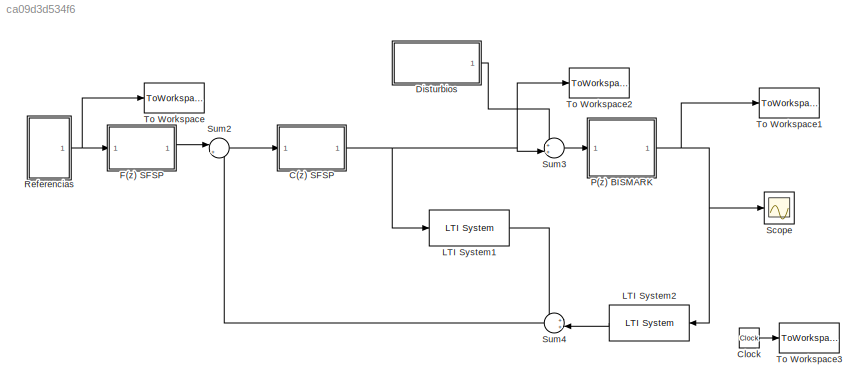
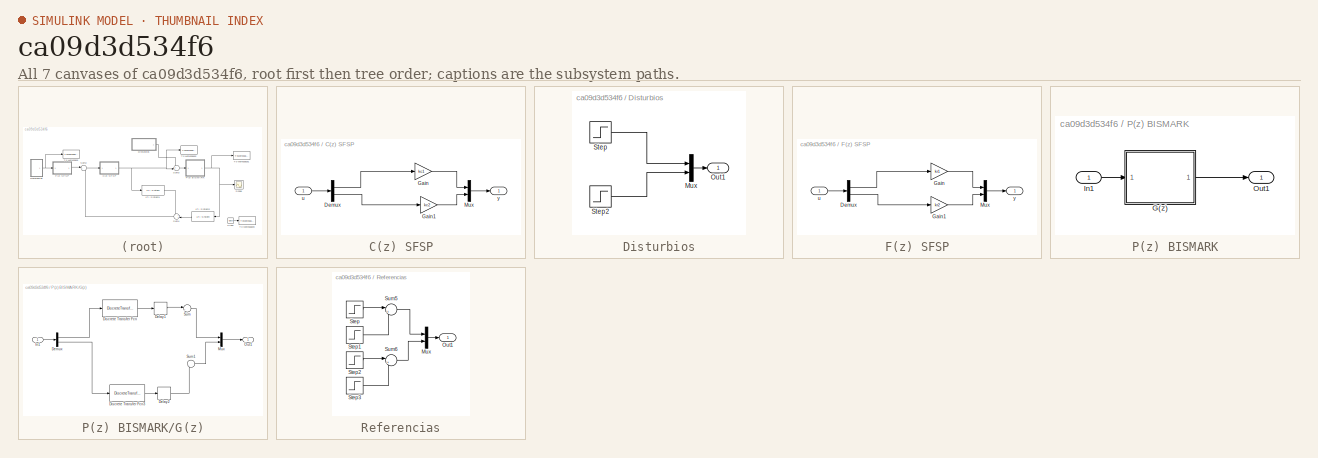
[diagram: thumbnail index - all 7 canvases of the model, root first then tree order]
MODEL slx_ca09d3d534f6
KIND model
CONFIG AbsTol = auto
CONFIG EnableMultiTasking = off
CONFIG FixedStep = auto
CONFIG MaxStep = 1e-4
CONFIG MinStep = auto
CONFIG RelTol = 1e-4
CONFIG SampleTimeConstraint = Unconstrained
CONFIG Solver = VariableStepAuto
CONFIG SolverName = VariableStepAuto
CONFIG StartTime = 0.0
CONFIG StopTime = 80
BLOCK [SubSystem] C(z) SFSP
  Ports = [1, 1]
  RequestExecContextInheritance = off
BLOCK [Demux] C(z) SFSP/Demux
  DisplayOption = bar
  Outputs = 2
  Ports = [1, 2]
BLOCK [Gain] C(z) SFSP/Gain
  Gain = kc1
  OutDataTypeStr = Inherit: Inherit via internal rule
  ParamDataTypeStr = Inherit: Inherit via internal rule
  SaturateOnIntegerOverflow = off
BLOCK [Gain] C(z) SFSP/Gain1
  Gain = kc2
  OutDataTypeStr = Inherit: Inherit via internal rule
  ParamDataTypeStr = Inherit: Inherit via internal rule
  SaturateOnIntegerOverflow = off
BLOCK [Mux] C(z) SFSP/Mux
  DisplayOption = bar
  Inputs = 2
  Ports = [2, 1]
BLOCK [Inport] C(z) SFSP/u
  IconDisplay = Port number
BLOCK [Outport] C(z) SFSP/y
  IconDisplay = Port number
BLOCK [Clock] Clock
BLOCK [SubSystem] Disturbios
  Ports = [0, 1]
  RequestExecContextInheritance = off
BLOCK [Mux] Disturbios/Mux
  DisplayOption = bar
  Inputs = 2
  Ports = [2, 1]
BLOCK [Outport] Disturbios/Out1
  IconDisplay = Port number
BLOCK [Step] Disturbios/Step
  After = -0.1
  SampleTime = Ts
  Time = dist1
BLOCK [Step] Disturbios/Step2
  After = 0.1
  SampleTime = Ts
  Time = dist2
BLOCK [SubSystem] F(z) SFSP
  Ports = [1, 1]
  RequestExecContextInheritance = off
BLOCK [Demux] F(z) SFSP/Demux
  DisplayOption = bar
  Outputs = 2
  Ports = [1, 2]
BLOCK [Gain] F(z) SFSP/Gain
  Gain = kr1
  OutDataTypeStr = Inherit: Inherit via internal rule
  ParamDataTypeStr = Inherit: Inherit via internal rule
  SaturateOnIntegerOverflow = off
BLOCK [Gain] F(z) SFSP/Gain1
  Gain = kr2
  OutDataTypeStr = Inherit: Inherit via internal rule
  ParamDataTypeStr = Inherit: Inherit via internal rule
  SaturateOnIntegerOverflow = off
BLOCK [Mux] F(z) SFSP/Mux
  DisplayOption = bar
  Inputs = 2
  Ports = [2, 1]
BLOCK [Inport] F(z) SFSP/u
  IconDisplay = Port number
BLOCK [Outport] F(z) SFSP/y
  IconDisplay = Port number
BLOCK [Reference] LTI System1  REF=cstblocks/LTI System
  Ports = [1, 1]
  SourceBlock = cstblocks/LTI System
  SourceProductBaseCode = CT
  SourceProductName = Control System Toolbox
  SourceType = LTI Block
BLOCK [Reference] LTI System2  REF=cstblocks/LTI System
  Ports = [1, 1]
  SourceBlock = cstblocks/LTI System
  SourceProductBaseCode = CT
  SourceProductName = Control System Toolbox
  SourceType = LTI Block
BLOCK [SubSystem] P(z) BISMARK
  Ports = [1, 1]
  RequestExecContextInheritance = off
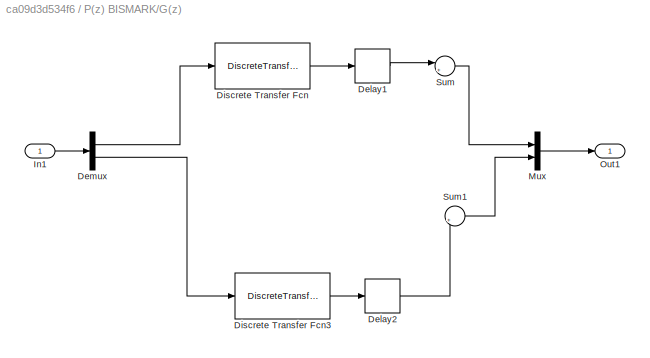
BLOCK [SubSystem] P(z) BISMARK/G(z)
  Ports = [1, 1]
  RequestExecContextInheritance = off
BLOCK [Delay] P(z) BISMARK/G(z)/Delay1
  DelayLength = 20
  InputPortMap = u0
  Ports = [1, 1]
  SampleTime = Ts
BLOCK [Delay] P(z) BISMARK/G(z)/Delay2
  DelayLength = 15
  InputPortMap = u0
  Ports = [1, 1]
  SampleTime = Ts
BLOCK [Demux] P(z) BISMARK/G(z)/Demux
  DisplayOption = bar
  Outputs = 2
  Ports = [1, 2]
BLOCK [DiscreteTransferFcn] P(z) BISMARK/G(z)/Discrete Transfer Fcn
  Denominator = 1.1826*[1 -1.08]
  InputPortMap = u0
  Numerator = -0.12793
  Ports = [1, 1]
  SampleTime = Ts
BLOCK [DiscreteTransferFcn] P(z) BISMARK/G(z)/Discrete Transfer Fcn3
  Denominator = 1.1826*[1 -1.095]
  InputPortMap = u0
  Numerator = -0.1618
  Ports = [1, 1]
  SampleTime = Ts
BLOCK [Inport] P(z) BISMARK/G(z)/In1
  IconDisplay = Port number
BLOCK [Mux] P(z) BISMARK/G(z)/Mux
  DisplayOption = bar
  Inputs = 2
  Ports = [2, 1]
BLOCK [Outport] P(z) BISMARK/G(z)/Out1
  IconDisplay = Port number
BLOCK [Sum] P(z) BISMARK/G(z)/Sum
  IconShape = round
  InputSameDT = off
  Inputs = |++
  OutDataTypeStr = Inherit: Inherit via internal rule
  Ports = [2, 1]
  SaturateOnIntegerOverflow = off
BLOCK [Sum] P(z) BISMARK/G(z)/Sum1
  IconShape = round
  InputSameDT = off
  Inputs = |++
  OutDataTypeStr = Inherit: Inherit via internal rule
  Ports = [2, 1]
  SaturateOnIntegerOverflow = off
BLOCK [Inport] P(z) BISMARK/In1
  IconDisplay = Port number
BLOCK [Outport] P(z) BISMARK/Out1
  IconDisplay = Port number
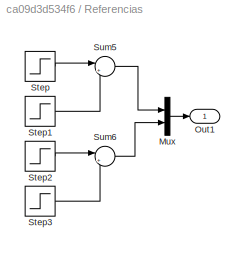
BLOCK [SubSystem] Referencias
  Ports = [0, 1]
  RequestExecContextInheritance = off
BLOCK [Mux] Referencias/Mux
  DisplayOption = bar
  Inputs = 2
  Ports = [2, 1]
BLOCK [Outport] Referencias/Out1
  IconDisplay = Port number
BLOCK [Step] Referencias/Step
  After = ref11
  SampleTime = Ts
  Time = tref11
BLOCK [Step] Referencias/Step1
  After = ref12
  SampleTime = Ts
  Time = tref12
BLOCK [Step] Referencias/Step2
  After = ref21
  SampleTime = Ts
  Time = tref21
BLOCK [Step] Referencias/Step3
  After = ref22
  SampleTime = Ts
  Time = tref22
BLOCK [Sum] Referencias/Sum5
  IconShape = round
  InputSameDT = off
  Inputs = |++
  OutDataTypeStr = Inherit: Inherit via internal rule
  Ports = [2, 1]
  SaturateOnIntegerOverflow = off
BLOCK [Sum] Referencias/Sum6
  IconShape = round
  InputSameDT = off
  Inputs = |++
  OutDataTypeStr = Inherit: Inherit via internal rule
  Ports = [2, 1]
  SaturateOnIntegerOverflow = off
BLOCK [Scope] Scope
  Floating = off
  NumInputPorts = 1
  Ports = [1]
  ScopeSpecificationString = Simulink.scopes.TimeScopeBlockCfg('CurrentConfiguration', extmgr.ConfigurationSet(extmgr.Configuration('Core','General UI',true),extmgr.Configuration('Core','Source UI',true),extmgr.Configuration('Sources','WiredSimulink',true),extmgr.Configuration('Visuals','Time Domain',true,'SerializedDisplays',{struct('MinYLimReal','-25070678587499858994889667780908425412608.00000','MaxYLimReal','2785630954166...<+1700ch>
BLOCK [Sum] Sum2
  IconShape = round
  InputSameDT = off
  Inputs = |+-
  OutDataTypeStr = Inherit: Inherit via internal rule
  Ports = [2, 1]
  SaturateOnIntegerOverflow = off
BLOCK [Sum] Sum3
  IconShape = round
  InputSameDT = off
  Inputs = ++|
  OutDataTypeStr = Inherit: Inherit via internal rule
  Ports = [2, 1]
  SaturateOnIntegerOverflow = off
BLOCK [Sum] Sum4
  IconShape = round
  InputSameDT = off
  Inputs = ++|
  OutDataTypeStr = Inherit: Inherit via internal rule
  Ports = [2, 1]
  SaturateOnIntegerOverflow = off
BLOCK [ToWorkspace] To Workspace
  FixptAsFi = on
  MaxDataPoints = inf
  Ports = [1]
  SampleTime = -1
  Save2DSignal = 3-D array (concatenate along third dimension)
  VariableName = ref
BLOCK [ToWorkspace] To Workspace1
  FixptAsFi = on
  MaxDataPoints = inf
  Ports = [1]
  SampleTime = -1
  Save2DSignal = 3-D array (concatenate along third dimension)
  VariableName = y
BLOCK [ToWorkspace] To Workspace2
  FixptAsFi = on
  MaxDataPoints = inf
  Ports = [1]
  SampleTime = -1
  Save2DSignal = 3-D array (concatenate along third dimension)
  VariableName = u
BLOCK [ToWorkspace] To Workspace3
  FixptAsFi = on
  MaxDataPoints = inf
  Ports = [1]
  SampleTime = Ts
  Save2DSignal = 3-D array (concatenate along third dimension)
  VariableName = t
LINE C(z) SFSP/Demux:1 -> C(z) SFSP/Gain:1
LINE C(z) SFSP/Demux:2 -> C(z) SFSP/Gain1:1
LINE C(z) SFSP/Gain1:1 -> C(z) SFSP/Mux:2
LINE C(z) SFSP/Gain:1 -> C(z) SFSP/Mux:1
LINE C(z) SFSP/Mux:1 -> C(z) SFSP/y:1
LINE C(z) SFSP/u:1 -> C(z) SFSP/Demux:1
NET C(z) SFSP:1 -> LTI System1:1, Sum3:2, To Workspace2:1
LINE Clock:1 -> To Workspace3:1
LINE Disturbios/Mux:1 -> Disturbios/Out1:1
LINE Disturbios/Step2:1 -> Disturbios/Mux:2
LINE Disturbios/Step:1 -> Disturbios/Mux:1
LINE Disturbios:1 -> Sum3:1
LINE F(z) SFSP/Demux:1 -> F(z) SFSP/Gain:1
LINE F(z) SFSP/Demux:2 -> F(z) SFSP/Gain1:1
LINE F(z) SFSP/Gain1:1 -> F(z) SFSP/Mux:2
LINE F(z) SFSP/Gain:1 -> F(z) SFSP/Mux:1
LINE F(z) SFSP/Mux:1 -> F(z) SFSP/y:1
LINE F(z) SFSP/u:1 -> F(z) SFSP/Demux:1
LINE F(z) SFSP:1 -> Sum2:1
LINE LTI System1:1 -> Sum4:1
LINE LTI System2:1 -> Sum4:2
LINE P(z) BISMARK/G(z)/Delay1:1 -> P(z) BISMARK/G(z)/Sum:1
LINE P(z) BISMARK/G(z)/Delay2:1 -> P(z) BISMARK/G(z)/Sum1:2
LINE P(z) BISMARK/G(z)/Demux:1 -> P(z) BISMARK/G(z)/Discrete Transfer Fcn:1
LINE P(z) BISMARK/G(z)/Demux:2 -> P(z) BISMARK/G(z)/Discrete Transfer Fcn3:1
LINE P(z) BISMARK/G(z)/Discrete Transfer Fcn3:1 -> P(z) BISMARK/G(z)/Delay2:1
LINE P(z) BISMARK/G(z)/Discrete Transfer Fcn:1 -> P(z) BISMARK/G(z)/Delay1:1
LINE P(z) BISMARK/G(z)/In1:1 -> P(z) BISMARK/G(z)/Demux:1
LINE P(z) BISMARK/G(z)/Mux:1 -> P(z) BISMARK/G(z)/Out1:1
LINE P(z) BISMARK/G(z)/Sum1:1 -> P(z) BISMARK/G(z)/Mux:2
LINE P(z) BISMARK/G(z)/Sum:1 -> P(z) BISMARK/G(z)/Mux:1
LINE P(z) BISMARK/G(z):1 -> P(z) BISMARK/Out1:1
LINE P(z) BISMARK/In1:1 -> P(z) BISMARK/G(z):1
NET P(z) BISMARK:1 -> LTI System2:1, Scope:1, To Workspace1:1
LINE Referencias/Mux:1 -> Referencias/Out1:1
LINE Referencias/Step1:1 -> Referencias/Sum5:2
LINE Referencias/Step2:1 -> Referencias/Sum6:1
LINE Referencias/Step3:1 -> Referencias/Sum6:2
LINE Referencias/Step:1 -> Referencias/Sum5:1
LINE Referencias/Sum5:1 -> Referencias/Mux:1
LINE Referencias/Sum6:1 -> Referencias/Mux:2
NET Referencias:1 -> F(z) SFSP:1, To Workspace:1
LINE Sum2:1 -> C(z) SFSP:1
LINE Sum3:1 -> P(z) BISMARK:1
LINE Sum4:1 -> Sum2:2
note: NET lines group one-source signal fan-out (src -> all destinations, sorted); 1:1 wires keep LINE
